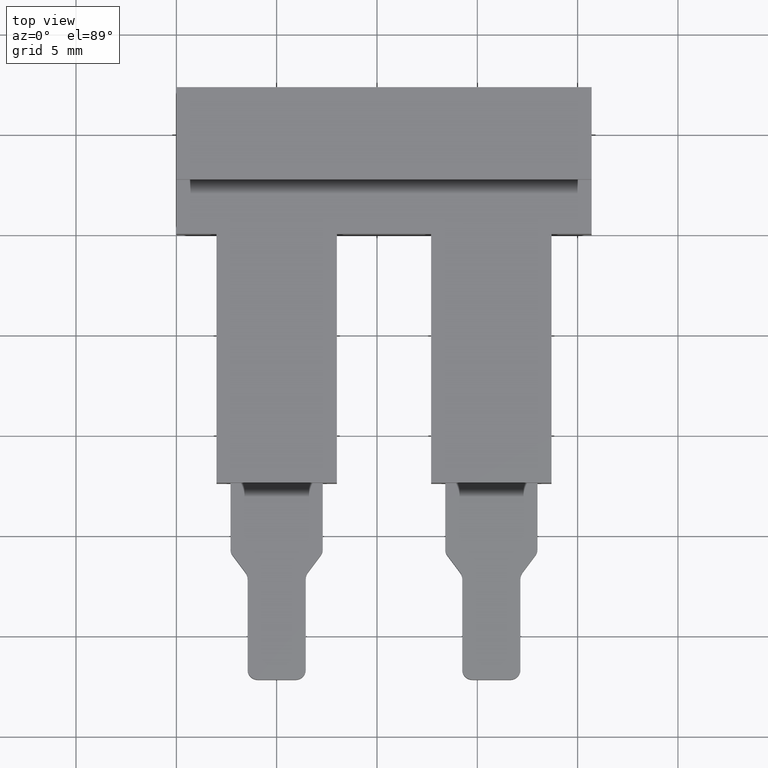
[diagram: clean part render]
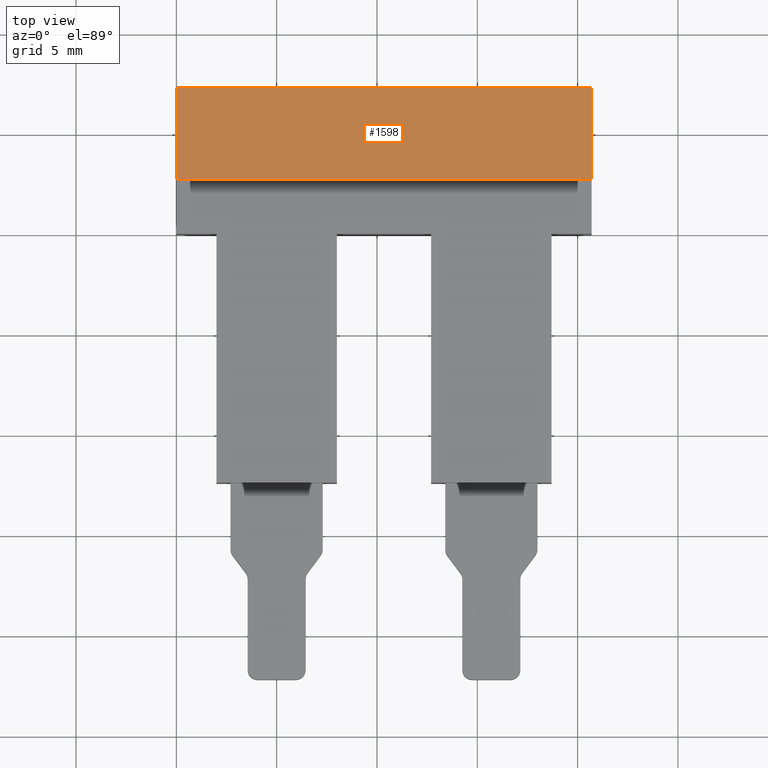
[diagram: same view with one face highlighted and labeled with its STEP entity id]
A machine part, top view. The second image highlights one B-rep face of the part: STEP entity #1598.
In plain terms, the highlighted planar face has unit normal (0, 0, 1).
Its self-contained STEP definition (entity closure, byte-faithful):
#163 = LINE ( 'NONE', #194, #1274 ) ;
#170 = DIRECTION ( 'NONE',  ( 1.000000000000000000, 2.775557561562890400E-016, 0.0000000000000000000 ) ) ;
#172 = DIRECTION ( 'NONE',  ( -1.000000000000000000, -2.775557561562890400E-016, 0.0000000000000000000 ) ) ;
#177 = CARTESIAN_POINT ( 'NONE',  ( 20.69999999999999600, 2.700000000000003300, 4.799999999999999800 ) ) ;
#186 = LINE ( 'NONE', #177, #1267 ) ;
#187 = CARTESIAN_POINT ( 'NONE',  ( 20.69999999999999200, 7.300000000000002500, 4.799999999999999800 ) ) ;
#193 = DIRECTION ( 'NONE',  ( -3.016491377670779700E-016, 1.000000000000000000, 0.0000000000000000000 ) ) ;
#194 = CARTESIAN_POINT ( 'NONE',  ( -21.40000000000000200, 7.299999999999991800, 4.799999999999999800 ) ) ;
#206 = LINE ( 'NONE', #187, #1296 ) ;
#449 = VERTEX_POINT ( 'NONE', #860 ) ;
#461 = VERTEX_POINT ( 'NONE', #830 ) ;
#463 = VERTEX_POINT ( 'NONE', #808 ) ;
#467 = VERTEX_POINT ( 'NONE', #831 ) ;
#516 = EDGE_LOOP ( 'NONE', ( #730, #714, #737, #716 ) ) ;
#714 = ORIENTED_EDGE ( 'NONE', *, *, #1561, .T. ) ;
#716 = ORIENTED_EDGE ( 'NONE', *, *, #1485, .T. ) ;
#730 = ORIENTED_EDGE ( 'NONE', *, *, #1483, .T. ) ;
#737 = ORIENTED_EDGE ( 'NONE', *, *, #1496, .T. ) ;
#808 = CARTESIAN_POINT ( 'NONE',  ( 20.69999999999999200, 7.300000000000002500, 4.799999999999999800 ) ) ;
#830 = CARTESIAN_POINT ( 'NONE',  ( -1.108295554096292100E-016, 2.699999999999997500, 4.799999999999999800 ) ) ;
#831 = CARTESIAN_POINT ( 'NONE',  ( 0.0000000000000000000, 7.299999999999999800, 4.799999999999999800 ) ) ;
#860 = CARTESIAN_POINT ( 'NONE',  ( 20.69999999999999200, 2.700000000000002800, 4.799999999999999800 ) ) ;
#993 = LINE ( 'NONE', #994, #1312 ) ;
#994 = CARTESIAN_POINT ( 'NONE',  ( 0.0000000000000000000, 7.299999999999999800, 4.799999999999999800 ) ) ;
#1023 = DIRECTION ( 'NONE',  ( -2.409338161078894500E-017, -1.000000000000000000, 0.0000000000000000000 ) ) ;
#1111 = PLANE ( 'NONE',  #1393 ) ;
#1143 = DIRECTION ( 'NONE',  ( 1.000000000000000000, 0.0000000000000000000, -0.0000000000000000000 ) ) ;
#1156 = DIRECTION ( 'NONE',  ( 0.0000000000000000000, 0.0000000000000000000, 1.000000000000000000 ) ) ;
#1158 = FACE_OUTER_BOUND ( 'NONE', #516, .T. ) ;
#1172 = CARTESIAN_POINT ( 'NONE',  ( -21.40000000000000200, 7.299999999999991800, 4.799999999999999800 ) ) ;
#1267 = VECTOR ( 'NONE', #170, 1000.000000000000000 ) ;
#1274 = VECTOR ( 'NONE', #172, 1000.000000000000000 ) ;
#1296 = VECTOR ( 'NONE', #193, 1000.000000000000000 ) ;
#1312 = VECTOR ( 'NONE', #1023, 1000.000000000000000 ) ;
#1393 = AXIS2_PLACEMENT_3D ( 'NONE', #1172, #1156, #1143 ) ;
#1483 = EDGE_CURVE ( 'NONE', #463, #467, #163, .T. ) ;
#1485 = EDGE_CURVE ( 'NONE', #449, #463, #206, .T. ) ;
#1496 = EDGE_CURVE ( 'NONE', #461, #449, #186, .T. ) ;
#1561 = EDGE_CURVE ( 'NONE', #467, #461, #993, .T. ) ;
#1598 = ADVANCED_FACE ( 'NONE', ( #1158 ), #1111, .T. ) ;